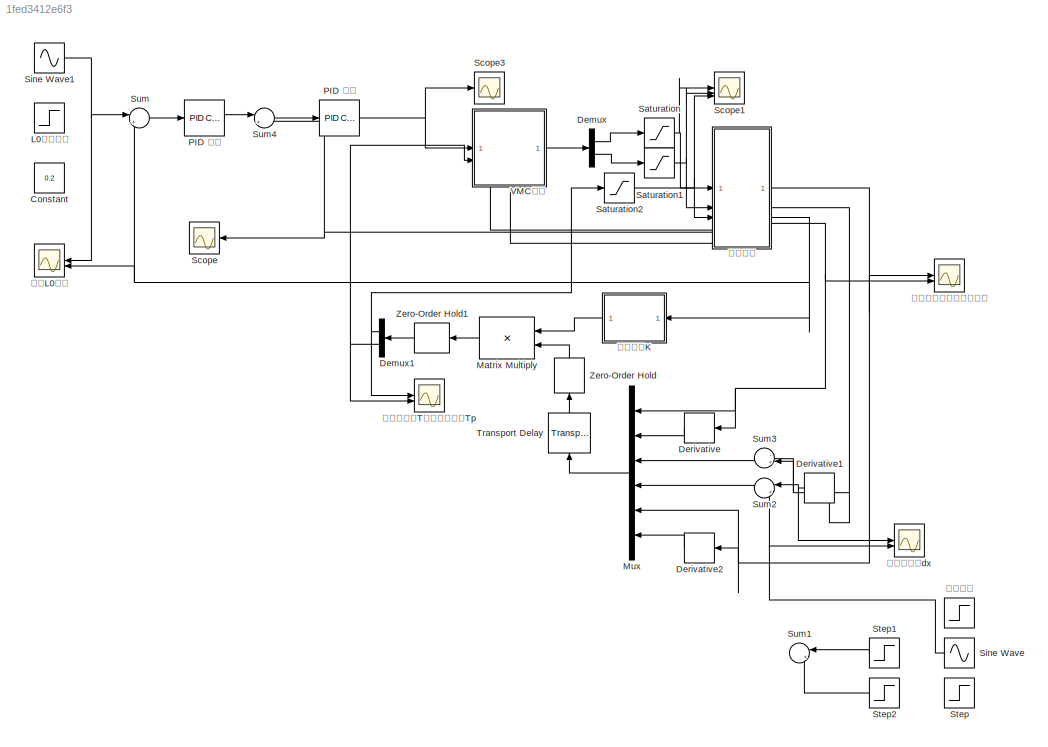
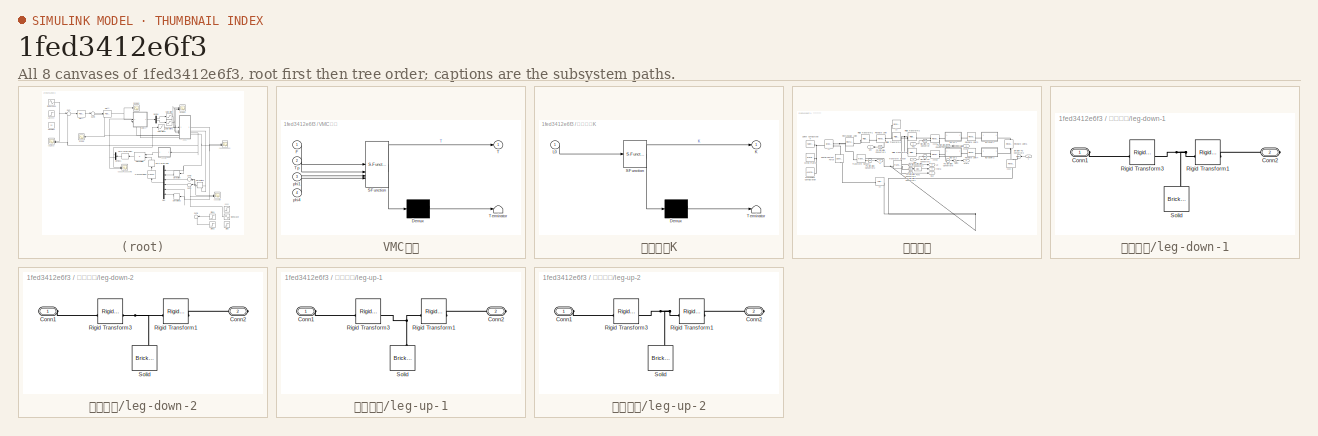
[diagram: thumbnail index - all 8 canvases of the model, root first then tree order]
MODEL slx_1fed3412e6f3
KIND model
CONFIG AbsTol = 1e-3
CONFIG EnableMultiTasking = on
CONFIG FixedStep = auto
CONFIG MaxStep = auto
CONFIG MinStep = auto
CONFIG RelTol = 1e-3
CONFIG SampleTimeConstraint = Unconstrained
CONFIG SolverName = VariableStepAuto
CONFIG StartTime = 0.0
CONFIG StopTime = 13
BLOCK [Constant] Constant
  Value = 0.2
BLOCK [Demux] Demux
  Outputs = 2
BLOCK [Demux] Demux1
  NameLocation = top
  Outputs = 2
BLOCK [Derivative] Derivative
BLOCK [Derivative] Derivative1
BLOCK [Derivative] Derivative2
BLOCK [Step] L0阶跃目标
  After = 0.25
  Before = 0.15
  NameLocation = top
  SampleTime = 0
  Time = 5
BLOCK [Product] Matrix Multiply
  Multiplication = Matrix(*)
  NameLocation = top
BLOCK [Mux] Mux
  DisplayOption = bar
  Inputs = 6
  NameLocation = top
BLOCK [Reference] PID 内环  REF=slpidlib/PID Controller
  SourceBlock = slpidlib/PID Controller
  SourceType = PID 1dof
BLOCK [Reference] PID 外环  REF=slpidlib/PID Controller
  SourceBlock = slpidlib/PID Controller
  SourceType = PID 1dof
BLOCK [Saturate] Saturation
  LowerLimit = -13
  UpperLimit = 13
  ZeroCross = off
BLOCK [Saturate] Saturation1
  LowerLimit = -13
  UpperLimit = 13
  ZeroCross = off
BLOCK [Saturate] Saturation2
  LowerLimit = -5
  UpperLimit = 5
  ZeroCross = off
BLOCK [Scope] Scope
  Floating = off
  NameLocation = top
  NumInputPorts = 1
  ScopeSpecificationString = Simulink.scopes.TimeScopeBlockCfg('CurrentConfiguration', extmgr.ConfigurationSet(extmgr.Configuration('Core','General UI',true),extmgr.Configuration('Core','Source UI',true),extmgr.Configuration('Sources','WiredSimulink',true,'DataLoggingVariableName','ScopeData1'),extmgr.Configuration('Visuals','Time Domain',true,'SerializedDisplays',{struct('MinYLimReal','-1.67142','MaxYLimReal','2.47089','YLab...<+1394ch>
BLOCK [Scope] Scope1
  Floating = off
  NumInputPorts = 3
  ScopeSpecificationString = Simulink.scopes.TimeScopeBlockCfg('CurrentConfiguration', extmgr.ConfigurationSet(extmgr.Configuration('Core','General UI',true),extmgr.Configuration('Core','Source UI',true),extmgr.Configuration('Sources','WiredSimulink',true,'DataLoggingVariableName','ScopeData1'),extmgr.Configuration('Visuals','Time Domain',true,'SerializedDisplays',{struct('MinYLimReal','1.93452','MaxYLimReal','5.92262','YLabe...<+1467ch>
BLOCK [Scope] Scope3
  Floating = off
  NumInputPorts = 1
  ScopeSpecificationString = Simulink.scopes.TimeScopeBlockCfg('CurrentConfiguration', extmgr.ConfigurationSet(extmgr.Configuration('Core','General UI',true),extmgr.Configuration('Core','Source UI',true),extmgr.Configuration('Sources','WiredSimulink',true,'DataLoggingVariableName','ScopeData1'),extmgr.Configuration('Visuals','Time Domain',true,'SerializedDisplays',{struct('MinYLimReal','107.2628','MaxYLimReal','129.54694','YL...<+1432ch>
BLOCK [Sin] Sine Wave
  Amplitude = 2
  NameLocation = top
  SampleTime = 0
BLOCK [Sin] Sine Wave1
  Amplitude = 0.05
  Bias = 0.20
  SampleTime = 0
BLOCK [Step] Step
  After = 0.3
  NameLocation = top
  SampleTime = 0
  Time = 0.2
BLOCK [Step] Step1
  After = 0.8
  NameLocation = top
  SampleTime = 0
  Time = 0.2
BLOCK [Step] Step2
  After = -0.8
  NameLocation = top
  SampleTime = 0
  Time = 4
BLOCK [Sum] Sum
  Inputs = |+-
BLOCK [Sum] Sum1
  Inputs = |++
  NameLocation = top
BLOCK [Sum] Sum2
  Inputs = |+-
  NameLocation = top
BLOCK [Sum] Sum3
  Inputs = -+|
  NameLocation = top
BLOCK [Sum] Sum4
  Inputs = |+-
BLOCK [TransportDelay] Transport Delay
  DelayTime = 0
  NameLocation = right
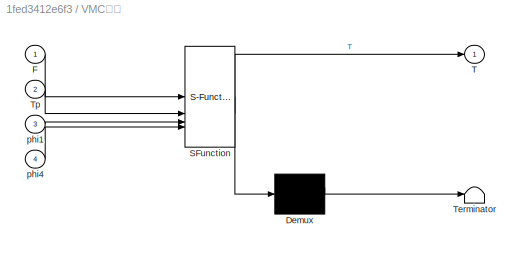
BLOCK [SubSystem] VMC解算
  ErrorFcn = Stateflow.Translate.translate
  PermitHierarchicalResolution = ExplicitOnly
  SFBlockType = MATLAB Function
  TreatAsAtomicUnit = on
BLOCK [Demux] VMC解算/ Demux 
  Outputs = 1
BLOCK [S-Function] VMC解算/ SFunction 
  EnableBusSupport = on
  FunctionName = sf_sfun
  PortCounts = [4 2]
  SFcnIsStateOwnerBlock = off
  SFunctionDeploymentMode = off
  Tag = Stateflow S-Function 2
BLOCK [Terminator] VMC解算/ Terminator 
BLOCK [Inport] VMC解算/F
BLOCK [Outport] VMC解算/T
  VectorParamsAs1DForOutWhenUnconnected = off
BLOCK [Inport] VMC解算/Tp
  Port = 2
BLOCK [Inport] VMC解算/phi1
  Port = 3
BLOCK [Inport] VMC解算/phi4
  Port = 4
BLOCK [ZeroOrderHold] Zero-Order Hold
  NameLocation = left
  SampleTime = 0.005
BLOCK [ZeroOrderHold] Zero-Order Hold1
  SampleTime = 0.005
BLOCK [SubSystem] 反馈矩阵K
  ErrorFcn = Stateflow.Translate.translate
  PermitHierarchicalResolution = ExplicitOnly
  SFBlockType = MATLAB Function
  TreatAsAtomicUnit = on
BLOCK [Demux] 反馈矩阵K/ Demux 
  Outputs = 1
BLOCK [S-Function] 反馈矩阵K/ SFunction 
  EnableBusSupport = on
  FunctionName = sf_sfun
  PortCounts = [1 2]
  SFcnIsStateOwnerBlock = off
  SFunctionDeploymentMode = off
  Tag = Stateflow S-Function 1
BLOCK [Terminator] 反馈矩阵K/ Terminator 
BLOCK [Outport] 反馈矩阵K/K
  VectorParamsAs1DForOutWhenUnconnected = off
BLOCK [Inport] 反馈矩阵K/L0
BLOCK [Scope] 摆长L0图像
  Floating = off
  NameLocation = top
  NumInputPorts = 2
  ScopeSpecificationString = Simulink.scopes.TimeScopeBlockCfg('CurrentConfiguration', extmgr.ConfigurationSet(extmgr.Configuration('Core','General UI',true,'FigureColor',[1 1 1]),extmgr.Configuration('Core','Source UI',true),extmgr.Configuration('Sources','WiredSimulink',true,'DataLoggingVariableName','ScopeData1'),extmgr.Configuration('Visuals','Time Domain',true,'SerializedDisplays',{struct('MinYLimReal','0.1087','MaxYLimR...<+1719ch>
BLOCK [Scope] 机体水平角和摆杆竖直角
  Floating = off
  NumInputPorts = 2
  ScopeSpecificationString = Simulink.scopes.TimeScopeBlockCfg('CurrentConfiguration', extmgr.ConfigurationSet(extmgr.Configuration('Core','General UI',true,'FigureColor',[1 1 1]),extmgr.Configuration('Core','Source UI',true),extmgr.Configuration('Sources','WiredSimulink',true,'DataLoggingVariableName','ScopeData1'),extmgr.Configuration('Visuals','Time Domain',true,'SerializedDisplays',{struct('MinYLimReal','-0.39541','MaxYLi...<+1645ch>
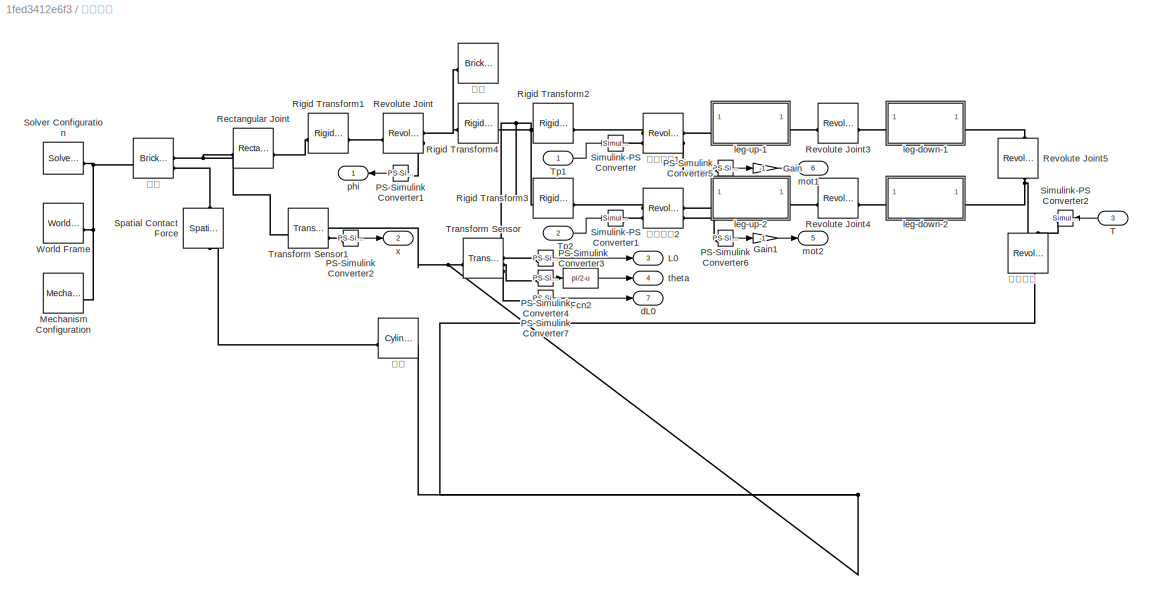
BLOCK [SubSystem] 物理系统
  NameLocation = top
  PortSchema = {"entries":[{"content":{"sides":[{"content":{"connectorIds":["In1","In2","In3","Out5","Out6","Out7"]},"type":"ConnectorPlacement.EquallySpacedRectSide","uuid":"664d59a3-0a31-49e2-bbc6-fa33d49ec8c0"},{"content":{"connectorIds":["Out1","Out2","Out3","Out4"],"side":"RIGHT"},"type":"ConnectorPlacement.EquallySpacedRectSide","uuid":"d048cd87-328e-45c8-839d-92aa139afc03"},{"content":{"side":"TOP"},"type...<+276ch>
BLOCK [Fcn] 物理系统/Fcn2
  Expr = pi/2-u
BLOCK [Gain] 物理系统/Gain
  Gain = -1
BLOCK [Gain] 物理系统/Gain1
  Gain = -1
BLOCK [Outport] 物理系统/L0
  NameLocation = right
  Port = 3
BLOCK [Reference] 物理系统/Mechanism Configuration  REF=sm_lib/Utilities/Mechanism
Configuration
  SourceBlock = sm_lib/Utilities/Mechanism\nConfiguration
  SourceType = Mechanism\nConfiguration
BLOCK [Reference] 物理系统/PS-Simulink Converter1  REF=nesl_utility/PS-Simulink
Converter
  SourceBlock = nesl_utility/PS-Simulink\nConverter
  SourceType = PS-Simulink\nConverter
BLOCK [Reference] 物理系统/PS-Simulink Converter2  REF=nesl_utility/PS-Simulink
Converter
  NameLocation = top
  SourceBlock = nesl_utility/PS-Simulink\nConverter
  SourceType = PS-Simulink\nConverter
BLOCK [Reference] 物理系统/PS-Simulink Converter3  REF=nesl_utility/PS-Simulink
Converter
  NameLocation = top
  SourceBlock = nesl_utility/PS-Simulink\nConverter
  SourceType = PS-Simulink\nConverter
BLOCK [Reference] 物理系统/PS-Simulink Converter4  REF=nesl_utility/PS-Simulink
Converter
  NameLocation = top
  SourceBlock = nesl_utility/PS-Simulink\nConverter
  SourceType = PS-Simulink\nConverter
BLOCK [Reference] 物理系统/PS-Simulink Converter5  REF=nesl_utility/PS-Simulink
Converter
  NameLocation = top
  SourceBlock = nesl_utility/PS-Simulink\nConverter
  SourceType = PS-Simulink\nConverter
BLOCK [Reference] 物理系统/PS-Simulink Converter6  REF=nesl_utility/PS-Simulink
Converter
  NameLocation = top
  SourceBlock = nesl_utility/PS-Simulink\nConverter
  SourceType = PS-Simulink\nConverter
BLOCK [Reference] 物理系统/PS-Simulink Converter7  REF=nesl_utility/PS-Simulink
Converter
  NameLocation = top
  SourceBlock = nesl_utility/PS-Simulink\nConverter
  SourceType = PS-Simulink\nConverter
BLOCK [Reference] 物理系统/Rectangular Joint  REF=sm_lib/Joints/Rectangular
Joint
  SourceBlock = sm_lib/Joints/Rectangular\nJoint
  SourceType = Rectangular\nJoint
BLOCK [Reference] 物理系统/Revolute Joint  REF=sm_lib/Joints/Revolute Joint
  SourceBlock = sm_lib/Joints/Revolute Joint
  SourceType = Revolute Joint
BLOCK [Reference] 物理系统/Revolute Joint3  REF=sm_lib/Joints/Revolute Joint
  SourceBlock = sm_lib/Joints/Revolute Joint
  SourceType = Revolute Joint
BLOCK [Reference] 物理系统/Revolute Joint4  REF=sm_lib/Joints/Revolute Joint
  SourceBlock = sm_lib/Joints/Revolute Joint
  SourceType = Revolute Joint
BLOCK [Reference] 物理系统/Revolute Joint5  REF=sm_lib/Joints/Revolute Joint
  NameLocation = right
  SourceBlock = sm_lib/Joints/Revolute Joint
  SourceType = Revolute Joint
BLOCK [Reference] 物理系统/Rigid Transform1  REF=sm_lib/Frames and
Transforms/Rigid
Transform
  SourceBlock = sm_lib/Frames and\nTransforms/Rigid\nTransform
  SourceType = Rigid\nTransform
BLOCK [Reference] 物理系统/Rigid Transform2  REF=sm_lib/Frames and
Transforms/Rigid
Transform
  SourceBlock = sm_lib/Frames and\nTransforms/Rigid\nTransform
  SourceType = Rigid\nTransform
BLOCK [Reference] 物理系统/Rigid Transform3  REF=sm_lib/Frames and
Transforms/Rigid
Transform
  SourceBlock = sm_lib/Frames and\nTransforms/Rigid\nTransform
  SourceType = Rigid\nTransform
BLOCK [Reference] 物理系统/Rigid Transform4  REF=sm_lib/Frames and
Transforms/Rigid
Transform
  SourceBlock = sm_lib/Frames and\nTransforms/Rigid\nTransform
  SourceType = Rigid\nTransform
BLOCK [Reference] 物理系统/Simulink-PS Converter  REF=nesl_utility/Simulink-PS
Converter
  SourceBlock = nesl_utility/Simulink-PS\nConverter
  SourceType = Simulink-PS\nConverter
BLOCK [Reference] 物理系统/Simulink-PS Converter1  REF=nesl_utility/Simulink-PS
Converter
  SourceBlock = nesl_utility/Simulink-PS\nConverter
  SourceType = Simulink-PS\nConverter
BLOCK [Reference] 物理系统/Simulink-PS Converter2  REF=nesl_utility/Simulink-PS
Converter
  NameLocation = top
  SourceBlock = nesl_utility/Simulink-PS\nConverter
  SourceType = Simulink-PS\nConverter
BLOCK [Reference] 物理系统/Solver Configuration  REF=nesl_utility/Solver
Configuration
  SourceBlock = nesl_utility/Solver\nConfiguration
  SourceType = Solver\nConfiguration
BLOCK [Reference] 物理系统/Spatial Contact Force  REF=sm_lib/Forces and
Torques/Spatial
Contact Force
  NameLocation = left
  SourceBlock = sm_lib/Forces and\nTorques/Spatial\nContact Force
  SourceType = Spatial\nContact Force
BLOCK [Inport] 物理系统/T
  NameLocation = right
  Port = 3
BLOCK [Inport] 物理系统/Tp1
  NameLocation = left
BLOCK [Inport] 物理系统/Tp2
  NameLocation = left
  Port = 2
BLOCK [Reference] 物理系统/Transform Sensor  REF=sm_lib/Frames and
Transforms/Transform
Sensor
  SourceBlock = sm_lib/Frames and\nTransforms/Transform\nSensor
  SourceType = Transform\nSensor
BLOCK [Reference] 物理系统/Transform Sensor1  REF=sm_lib/Frames and
Transforms/Transform
Sensor
  SourceBlock = sm_lib/Frames and\nTransforms/Transform\nSensor
  SourceType = Transform\nSensor
BLOCK [Reference] 物理系统/World Frame  REF=sm_lib/Frames and
Transforms/World Frame
  SourceBlock = sm_lib/Frames and\nTransforms/World Frame
  SourceType = World Frame
BLOCK [Outport] 物理系统/dL0
  NameLocation = right
  Port = 7
BLOCK [SubSystem] 物理系统/leg-down-1
BLOCK [PMIOPort] 物理系统/leg-down-1/Conn1
  Side = Left
BLOCK [PMIOPort] 物理系统/leg-down-1/Conn2
  Port = 2
  Side = Right
BLOCK [Reference] 物理系统/leg-down-1/Rigid Transform1  REF=sm_lib/Frames and
Transforms/Rigid
Transform
  SourceBlock = sm_lib/Frames and\nTransforms/Rigid\nTransform
  SourceType = Rigid\nTransform
BLOCK [Reference] 物理系统/leg-down-1/Rigid Transform3  REF=sm_lib/Frames and
Transforms/Rigid
Transform
  SourceBlock = sm_lib/Frames and\nTransforms/Rigid\nTransform
  SourceType = Rigid\nTransform
BLOCK [Reference] 物理系统/leg-down-1/Solid  REF=sm_lib/Body Elements/Brick Solid
  NameLocation = right
  SourceBlock = sm_lib/Body Elements/Brick Solid
  SourceType = Brick Solid
BLOCK [SubSystem] 物理系统/leg-down-2
BLOCK [PMIOPort] 物理系统/leg-down-2/Conn1
  Side = Left
BLOCK [PMIOPort] 物理系统/leg-down-2/Conn2
  Port = 2
  Side = Right
BLOCK [Reference] 物理系统/leg-down-2/Rigid Transform1  REF=sm_lib/Frames and
Transforms/Rigid
Transform
  SourceBlock = sm_lib/Frames and\nTransforms/Rigid\nTransform
  SourceType = Rigid\nTransform
BLOCK [Reference] 物理系统/leg-down-2/Rigid Transform3  REF=sm_lib/Frames and
Transforms/Rigid
Transform
  SourceBlock = sm_lib/Frames and\nTransforms/Rigid\nTransform
  SourceType = Rigid\nTransform
BLOCK [Reference] 物理系统/leg-down-2/Solid  REF=sm_lib/Body Elements/Brick Solid
  NameLocation = right
  SourceBlock = sm_lib/Body Elements/Brick Solid
  SourceType = Brick Solid
BLOCK [SubSystem] 物理系统/leg-up-1
BLOCK [PMIOPort] 物理系统/leg-up-1/Conn1
  Side = Left
BLOCK [PMIOPort] 物理系统/leg-up-1/Conn2
  Port = 2
  Side = Right
BLOCK [Reference] 物理系统/leg-up-1/Rigid Transform1  REF=sm_lib/Frames and
Transforms/Rigid
Transform
  SourceBlock = sm_lib/Frames and\nTransforms/Rigid\nTransform
  SourceType = Rigid\nTransform
BLOCK [Reference] 物理系统/leg-up-1/Rigid Transform3  REF=sm_lib/Frames and
Transforms/Rigid
Transform
  SourceBlock = sm_lib/Frames and\nTransforms/Rigid\nTransform
  SourceType = Rigid\nTransform
BLOCK [Reference] 物理系统/leg-up-1/Solid  REF=sm_lib/Body Elements/Brick Solid
  NameLocation = right
  SourceBlock = sm_lib/Body Elements/Brick Solid
  SourceType = Brick Solid
BLOCK [SubSystem] 物理系统/leg-up-2
BLOCK [PMIOPort] 物理系统/leg-up-2/Conn1
  Side = Left
BLOCK [PMIOPort] 物理系统/leg-up-2/Conn2
  Port = 2
  Side = Right
BLOCK [Reference] 物理系统/leg-up-2/Rigid Transform1  REF=sm_lib/Frames and
Transforms/Rigid
Transform
  SourceBlock = sm_lib/Frames and\nTransforms/Rigid\nTransform
  SourceType = Rigid\nTransform
BLOCK [Reference] 物理系统/leg-up-2/Rigid Transform3  REF=sm_lib/Frames and
Transforms/Rigid
Transform
  SourceBlock = sm_lib/Frames and\nTransforms/Rigid\nTransform
  SourceType = Rigid\nTransform
BLOCK [Reference] 物理系统/leg-up-2/Solid  REF=sm_lib/Body Elements/Brick Solid
  NameLocation = right
  SourceBlock = sm_lib/Body Elements/Brick Solid
  SourceType = Brick Solid
BLOCK [Outport] 物理系统/mot1
  NameLocation = right
  Port = 6
BLOCK [Outport] 物理系统/mot2
  NameLocation = right
  Port = 5
BLOCK [Outport] 物理系统/phi
  NameLocation = left
BLOCK [Outport] 物理系统/theta
  NameLocation = right
  Port = 4
BLOCK [Outport] 物理系统/x
  NameLocation = right
  Port = 2
BLOCK [Reference] 物理系统/关节电机1  REF=sm_lib/Joints/Revolute Joint
  SourceBlock = sm_lib/Joints/Revolute Joint
  SourceType = Revolute Joint
BLOCK [Reference] 物理系统/关节电机2  REF=sm_lib/Joints/Revolute Joint
  SourceBlock = sm_lib/Joints/Revolute Joint
  SourceType = Revolute Joint
BLOCK [Reference] 物理系统/地面  REF=sm_lib/Body Elements/Brick Solid
  SourceBlock = sm_lib/Body Elements/Brick Solid
  SourceType = Brick Solid
BLOCK [Reference] 物理系统/机体  REF=sm_lib/Body Elements/Brick Solid
  SourceBlock = sm_lib/Body Elements/Brick Solid
  SourceType = Brick Solid
BLOCK [Reference] 物理系统/车轮  REF=sm_lib/Body Elements/Cylindrical Solid
  SourceBlock = sm_lib/Body Elements/Cylindrical Solid
  SourceType = Cylindrical Solid
BLOCK [Reference] 物理系统/车轮电机  REF=sm_lib/Joints/Revolute Joint
  SourceBlock = sm_lib/Joints/Revolute Joint
  SourceType = Revolute Joint
BLOCK [Step] 速度给定
  After = 0
  SampleTime = 0
  Time = 2
BLOCK [Scope] 驱动轮力矩T和髋关节力矩Tp
  Floating = off
  NumInputPorts = 2
  ScopeSpecificationString = Simulink.scopes.TimeScopeBlockCfg('CurrentConfiguration', extmgr.ConfigurationSet(extmgr.Configuration('Core','General UI',true),extmgr.Configuration('Core','Source UI',true),extmgr.Configuration('Sources','WiredSimulink',true,'DataLoggingVariableName','ScopeData2'),extmgr.Configuration('Visuals','Time Domain',true,'SerializedDisplays',{struct('MinYLimReal','-3.12559','MaxYLimReal','10.12185','YLa...<+1493ch>
BLOCK [Scope] 驱动轮速度dx
  Floating = off
  NumInputPorts = 2
  ScopeSpecificationString = Simulink.scopes.TimeScopeBlockCfg('CurrentConfiguration', extmgr.ConfigurationSet(extmgr.Configuration('Core','General UI',true,'FigureColor',[1 1 1]),extmgr.Configuration('Core','Source UI',true),extmgr.Configuration('Sources','WiredSimulink',true,'DataLoggingVariableName','ScopeData2'),extmgr.Configuration('Visuals','Time Domain',true,'SerializedDisplays',{struct('MinYLimReal','-2.5','MaxYLimRea...<+1676ch>
NET Demux1:1 -> Saturation2:1, 驱动轮力矩T和髋关节力矩Tp:1
NET Demux1:2 -> VMC解算:2, 驱动轮力矩T和髋关节力矩Tp:2
LINE Demux:1 -> Saturation:1
LINE Demux:2 -> Saturation1:1
NET Derivative1:1 -> Sum2:1, 驱动轮速度dx:1
LINE Derivative2:1 -> Mux:6
LINE Derivative:1 -> Mux:2
LINE Matrix Multiply:1 -> Zero-Order Hold1:1
LINE Mux:1 -> Transport Delay:1
NET PID 内环:1 -> Scope3:1, VMC解算:1
LINE PID 外环:1 -> Sum4:1
NET Saturation1:1 -> Scope1:2, 物理系统:2
NET Saturation2:1 -> Scope1:3, 物理系统:3
NET Saturation:1 -> Scope1:1, 物理系统:1
NET Sine Wave1:1 -> Sum:1, 摆长L0图像:1
NET Sine Wave:1 -> Sum2:2, 驱动轮速度dx:2
LINE Step1:1 -> Sum1:1
LINE Step2:1 -> Sum1:2
LINE Sum2:1 -> Mux:4
LINE Sum3:1 -> Mux:3
LINE Sum4:1 -> PID 内环:1
LINE Sum:1 -> PID 外环:1
LINE Transport Delay:1 -> Zero-Order Hold:1
LINE VMC解算:1 -> Demux:1
LINE Zero-Order Hold1:1 -> Demux1:1
LINE Zero-Order Hold:1 -> Matrix Multiply:2
LINE 反馈矩阵K:1 -> Matrix Multiply:1
LINE 物理系统/Fcn2:1 -> 物理系统/theta:1
LINE 物理系统/Gain1:1 -> 物理系统/mot2:1
LINE 物理系统/Gain:1 -> 物理系统/mot1:1
LINE 物理系统/PS-Simulink Converter1:1 -> 物理系统/phi:1
LINE 物理系统/PS-Simulink Converter2:1 -> 物理系统/x:1
LINE 物理系统/PS-Simulink Converter3:1 -> 物理系统/L0:1
LINE 物理系统/PS-Simulink Converter4:1 -> 物理系统/Fcn2:1
LINE 物理系统/PS-Simulink Converter5:1 -> 物理系统/Gain:1
LINE 物理系统/PS-Simulink Converter6:1 -> 物理系统/Gain1:1
LINE 物理系统/PS-Simulink Converter7:1 -> 物理系统/dL0:1
LINE 物理系统/T:1 -> 物理系统/Simulink-PS Converter2:1
LINE 物理系统/Tp1:1 -> 物理系统/Simulink-PS Converter:1
LINE 物理系统/Tp2:1 -> 物理系统/Simulink-PS Converter1:1
NET 物理系统:1 -> Derivative2:1, Mux:5, 机体水平角和摆杆竖直角:1
NET 物理系统:2 -> Derivative1:1, Sum3:1, Sum3:2
NET 物理系统:3 -> Sum:2, 反馈矩阵K:1, 摆长L0图像:2
NET 物理系统:4 -> Derivative:1, Mux:1, 机体水平角和摆杆竖直角:2
LINE 物理系统:5 -> VMC解算:3
LINE 物理系统:6 -> VMC解算:4
NET 物理系统:7 -> Scope:1, Sum4:2
PNET net1: 物理系统/Mechanism Configuration:RConn1 -- 物理系统/Solver Configuration:RConn1 -- 物理系统/World Frame:RConn1 -- 物理系统/地面:RConn1
PLINE 物理系统/PS-Simulink Converter1:LConn1 -- 物理系统/Revolute Joint:RConn2
PLINE 物理系统/PS-Simulink Converter2:LConn1 -- 物理系统/Transform Sensor1:RConn2
PLINE 物理系统/PS-Simulink Converter3:LConn1 -- 物理系统/Transform Sensor:RConn2
PLINE 物理系统/PS-Simulink Converter4:LConn1 -- 物理系统/Transform Sensor:RConn3
PLINE 物理系统/PS-Simulink Converter5:LConn1 -- 物理系统/关节电机1:RConn2
PLINE 物理系统/PS-Simulink Converter6:LConn1 -- 物理系统/关节电机2:RConn2
PLINE 物理系统/PS-Simulink Converter7:LConn1 -- 物理系统/Transform Sensor:RConn4
PNET net2: 物理系统/Rectangular Joint:LConn1 -- 物理系统/Transform Sensor1:LConn1 -- 物理系统/地面:LConn1
PLINE 物理系统/Rectangular Joint:RConn1 -- 物理系统/Rigid Transform1:LConn1
PLINE 物理系统/Revolute Joint3:LConn1 -- 物理系统/leg-up-1:RConn1
PLINE 物理系统/Revolute Joint3:RConn1 -- 物理系统/leg-down-1:LConn1
PLINE 物理系统/Revolute Joint4:LConn1 -- 物理系统/leg-up-2:RConn1
PLINE 物理系统/Revolute Joint4:RConn1 -- 物理系统/leg-down-2:LConn1
PNET net3: 物理系统/Revolute Joint5:LConn1 -- 物理系统/leg-down-2:RConn1 -- 物理系统/车轮电机:LConn1
PLINE 物理系统/Revolute Joint5:RConn1 -- 物理系统/leg-down-1:RConn1
PLINE 物理系统/Revolute Joint:LConn1 -- 物理系统/Rigid Transform1:RConn1
PNET net4: 物理系统/Revolute Joint:RConn1 -- 物理系统/Rigid Transform4:LConn1 -- 物理系统/机体:RConn1
PNET net5: 物理系统/Rigid Transform2:LConn1 -- 物理系统/Rigid Transform3:LConn1 -- 物理系统/Rigid Transform4:RConn1 -- 物理系统/Transform Sensor:RConn1
PLINE 物理系统/Rigid Transform2:RConn1 -- 物理系统/关节电机1:LConn1
PLINE 物理系统/Rigid Transform3:RConn1 -- 物理系统/关节电机2:LConn1
PLINE 物理系统/Simulink-PS Converter1:RConn1 -- 物理系统/关节电机2:LConn2
PLINE 物理系统/Simulink-PS Converter2:RConn1 -- 物理系统/车轮电机:LConn2
PLINE 物理系统/Simulink-PS Converter:RConn1 -- 物理系统/关节电机1:LConn2
PLINE 物理系统/Spatial Contact Force:LConn1 -- 物理系统/地面:LConn2
PLINE 物理系统/Spatial Contact Force:RConn1 -- 物理系统/车轮:LConn1
PNET net6: 物理系统/Transform Sensor1:RConn1 -- 物理系统/Transform Sensor:LConn1 -- 物理系统/车轮:RConn1 -- 物理系统/车轮电机:RConn1
PLINE 物理系统/leg-down-1/Conn1:RConn1 -- 物理系统/leg-down-1/Rigid Transform3:LConn1
PLINE 物理系统/leg-down-1/Conn2:RConn1 -- 物理系统/leg-down-1/Rigid Transform1:RConn1
PNET net7: 物理系统/leg-down-1/Rigid Transform1:LConn1 -- 物理系统/leg-down-1/Rigid Transform3:RConn1 -- 物理系统/leg-down-1/Solid:RConn1
PLINE 物理系统/leg-down-2/Conn1:RConn1 -- 物理系统/leg-down-2/Rigid Transform3:LConn1
PLINE 物理系统/leg-down-2/Conn2:RConn1 -- 物理系统/leg-down-2/Rigid Transform1:RConn1
PNET net8: 物理系统/leg-down-2/Rigid Transform1:LConn1 -- 物理系统/leg-down-2/Rigid Transform3:RConn1 -- 物理系统/leg-down-2/Solid:RConn1
PLINE 物理系统/leg-up-1/Conn1:RConn1 -- 物理系统/leg-up-1/Rigid Transform3:LConn1
PLINE 物理系统/leg-up-1/Conn2:RConn1 -- 物理系统/leg-up-1/Rigid Transform1:RConn1
PNET net9: 物理系统/leg-up-1/Rigid Transform1:LConn1 -- 物理系统/leg-up-1/Rigid Transform3:RConn1 -- 物理系统/leg-up-1/Solid:RConn1
PLINE 物理系统/leg-up-1:LConn1 -- 物理系统/关节电机1:RConn1
PLINE 物理系统/leg-up-2/Conn1:RConn1 -- 物理系统/leg-up-2/Rigid Transform3:LConn1
PLINE 物理系统/leg-up-2/Conn2:RConn1 -- 物理系统/leg-up-2/Rigid Transform1:RConn1
PNET net10: 物理系统/leg-up-2/Rigid Transform1:LConn1 -- 物理系统/leg-up-2/Rigid Transform3:RConn1 -- 物理系统/leg-up-2/Solid:RConn1
PLINE 物理系统/leg-up-2:LConn1 -- 物理系统/关节电机2:RConn1
note: NET lines group one-source signal fan-out (src -> all destinations, sorted); 1:1 wires keep LINE; PNET lines group multi-terminal physical nets as a canonical sorted terminal list (undirected conserving connections); 2-terminal nets keep the pairwise PLINE form
CHART 反馈矩阵K states=1 transitions=1
  STATE_LABEL 'eML_blk_kernel()'
  STATE_LABEL 'SCRIPT:\nfunction K = fcn(L0)\n    K=lqr_k(L0);\n'
CHART VMC解算 states=1 transitions=1
  STATE_LABEL 'eML_blk_kernel()'
  STATE_LABEL 'SCRIPT:\nfunction T = fcn(F,Tp,phi1,phi4)\n    T=leg_conv(F,Tp,phi1,phi4);\n'
CHART  states=0 transitions=0
CHART  states=0 transitions=0
